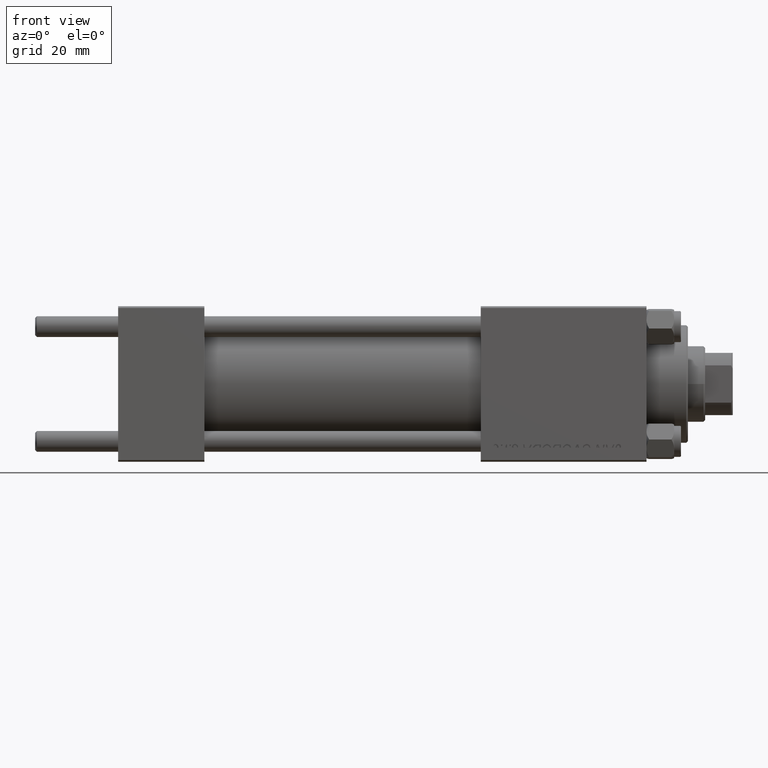
[diagram: clean part render]
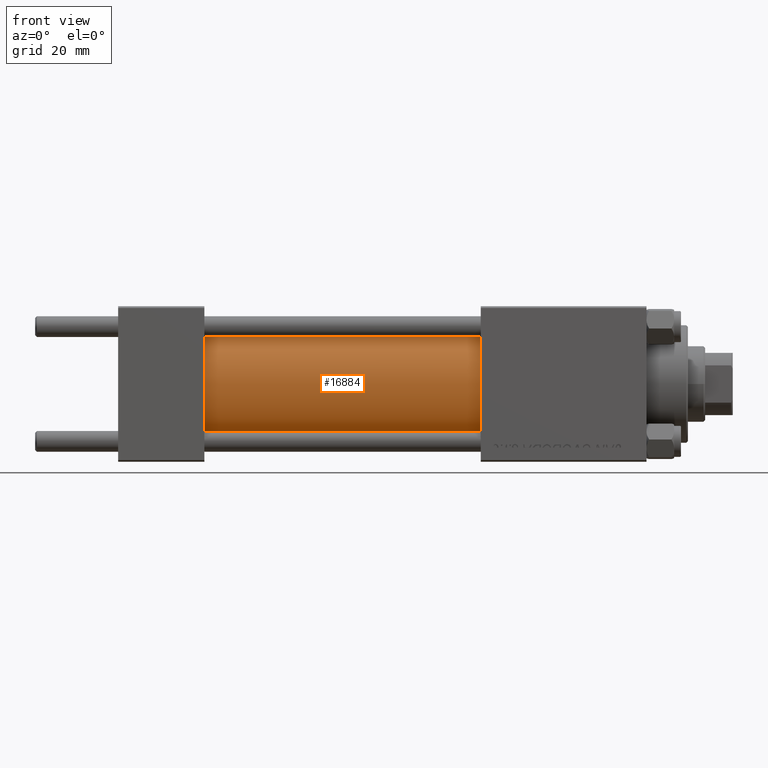
[diagram: same view with one face highlighted and labeled with its STEP entity id]
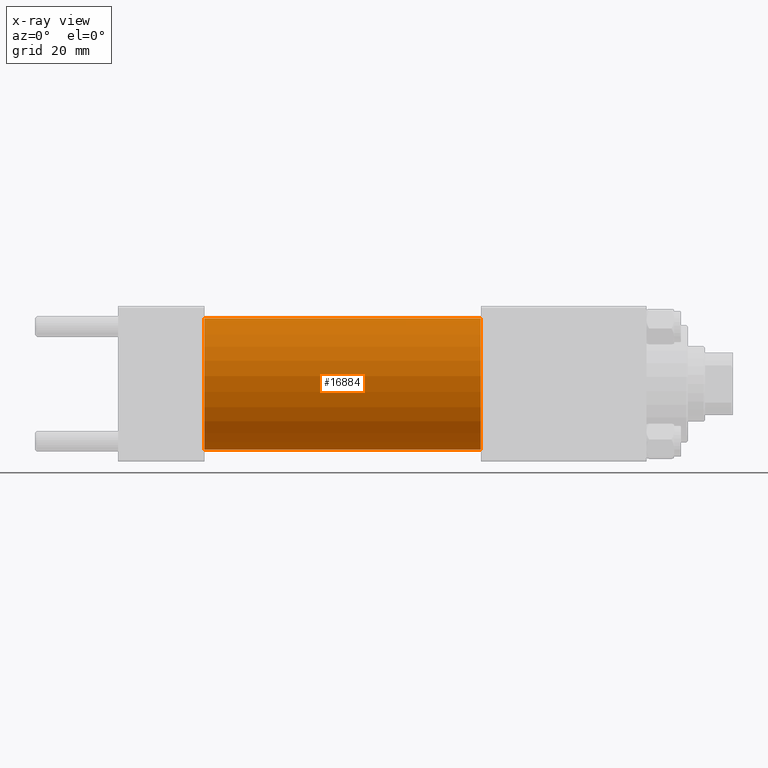
[diagram: x-ray of the same camera — body ghosted, the highlighted face saturated]
A machine part, front view. The second image highlights one B-rep face of the part: STEP entity #16884.
The next image is the same camera in x-ray: the body ghosted, the highlighted face saturated — about 0% of this face is hidden behind the body in this view.
In plain terms, the highlighted cylindrical surface (partial cylindrical patch) has radius 19 mm, axis along (-1, -0, -0).
Its self-contained STEP definition (entity closure, byte-faithful):
#1599 = DIRECTION ( 'NONE',  ( 0.000000000000000000, 0.000000000000000000, -1.000000000000000000 ) ) ;
#1856 = DIRECTION ( 'NONE',  ( 1.000000000000000000, 0.000000000000000000, 0.000000000000000000 ) ) ;
#2052 = EDGE_CURVE ( 'NONE', #13962, #43437, #4836, .T. ) ;
#3878 = AXIS2_PLACEMENT_3D ( 'NONE', #21840, #9964, #40818 ) ;
#4836 = LINE ( 'NONE', #5087, #7721 ) ;
#4908 = CARTESIAN_POINT ( 'NONE',  ( 24.99999999999999289, 0.000000000000000000, 0.000000000000000000 ) ) ;
#5087 = CARTESIAN_POINT ( 'NONE',  ( 105.0000000000000142, 0.000000000000000000, 19.00000000000000000 ) ) ;
#6304 = CARTESIAN_POINT ( 'NONE',  ( 105.0000000000000142, 2.326828918379970970E-15, -19.00000000000000000 ) ) ;
#7379 = CIRCLE ( 'NONE', #35649, 19.00000000000000000 ) ;
#7721 = VECTOR ( 'NONE', #35706, 1000.000000000000000 ) ;
#9529 = VECTOR ( 'NONE', #10836, 1000.000000000000000 ) ;
#9964 = DIRECTION ( 'NONE',  ( -1.000000000000000000, -0.000000000000000000, -0.000000000000000000 ) ) ;
#10214 = FACE_OUTER_BOUND ( 'NONE', #45359, .T. ) ;
#10465 = CYLINDRICAL_SURFACE ( 'NONE', #3878, 19.00000000000000000 ) ;
#10836 = DIRECTION ( 'NONE',  ( -1.000000000000000000, -0.000000000000000000, -0.000000000000000000 ) ) ;
#12211 = EDGE_CURVE ( 'NONE', #40410, #24144, #14130, .T. ) ;
#13175 = AXIS2_PLACEMENT_3D ( 'NONE', #39037, #1856, #1599 ) ;
#13251 = DIRECTION ( 'NONE',  ( 0.000000000000000000, 0.000000000000000000, 1.000000000000000000 ) ) ;
#13962 = VERTEX_POINT ( 'NONE', #22417 ) ;
#14130 = LINE ( 'NONE', #6304, #9529 ) ;
#16884 = ADVANCED_FACE ( 'NONE', ( #10214 ), #10465, .T. ) ;
#17589 = ORIENTED_EDGE ( 'NONE', *, *, #12211, .F. ) ;
#20171 = CARTESIAN_POINT ( 'NONE',  ( 24.99999999999999289, 0.000000000000000000, 19.00000000000000000 ) ) ;
#21452 = CARTESIAN_POINT ( 'NONE',  ( 24.99999999999999289, 2.326828918379970970E-15, -19.00000000000000000 ) ) ;
#21840 = CARTESIAN_POINT ( 'NONE',  ( 105.0000000000000142, 0.000000000000000000, 0.000000000000000000 ) ) ;
#22417 = CARTESIAN_POINT ( 'NONE',  ( 105.0000000000000142, 0.000000000000000000, 19.00000000000000000 ) ) ;
#24144 = VERTEX_POINT ( 'NONE', #21452 ) ;
#24958 = EDGE_CURVE ( 'NONE', #43437, #24144, #7379, .T. ) ;
#28429 = DIRECTION ( 'NONE',  ( 1.000000000000000000, -0.000000000000000000, 0.000000000000000000 ) ) ;
#32684 = EDGE_CURVE ( 'NONE', #13962, #40410, #39817, .T. ) ;
#34286 = ORIENTED_EDGE ( 'NONE', *, *, #24958, .T. ) ;
#35242 = CARTESIAN_POINT ( 'NONE',  ( 105.0000000000000142, 2.326828918379970970E-15, -19.00000000000000000 ) ) ;
#35649 = AXIS2_PLACEMENT_3D ( 'NONE', #4908, #28429, #13251 ) ;
#35706 = DIRECTION ( 'NONE',  ( -1.000000000000000000, -0.000000000000000000, -0.000000000000000000 ) ) ;
#39037 = CARTESIAN_POINT ( 'NONE',  ( 105.0000000000000142, 0.000000000000000000, 0.000000000000000000 ) ) ;
#39306 = ORIENTED_EDGE ( 'NONE', *, *, #32684, .F. ) ;
#39817 = CIRCLE ( 'NONE', #13175, 19.00000000000000000 ) ;
#40410 = VERTEX_POINT ( 'NONE', #35242 ) ;
#40818 = DIRECTION ( 'NONE',  ( 0.000000000000000000, 0.000000000000000000, 1.000000000000000000 ) ) ;
#43437 = VERTEX_POINT ( 'NONE', #20171 ) ;
#43899 = ORIENTED_EDGE ( 'NONE', *, *, #2052, .T. ) ;
#45359 = EDGE_LOOP ( 'NONE', ( #17589, #39306, #43899, #34286 ) ) ;